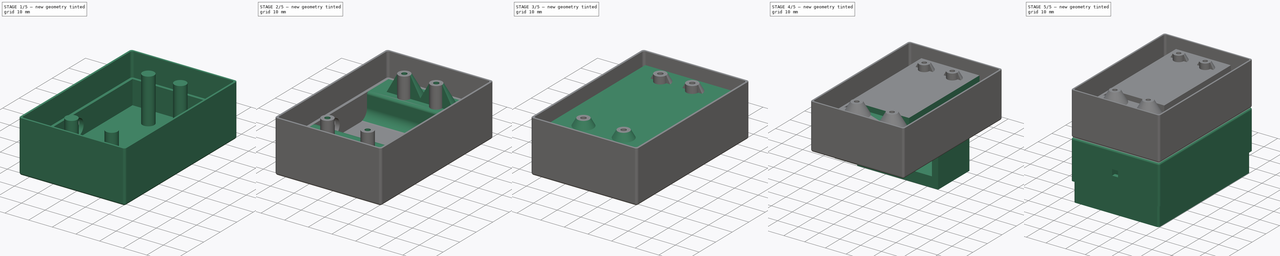
[diagram: build sequence overview — one tinted view per stage of 5, left to right]
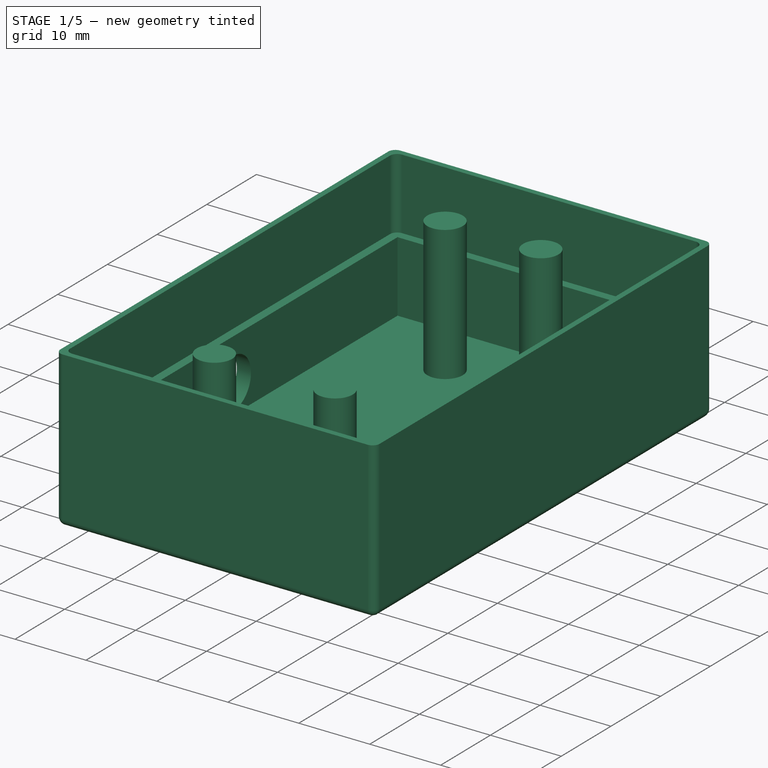
[diagram: stage 1 of 5 — iso view after this stage's code; geometry added in this stage tinted green]
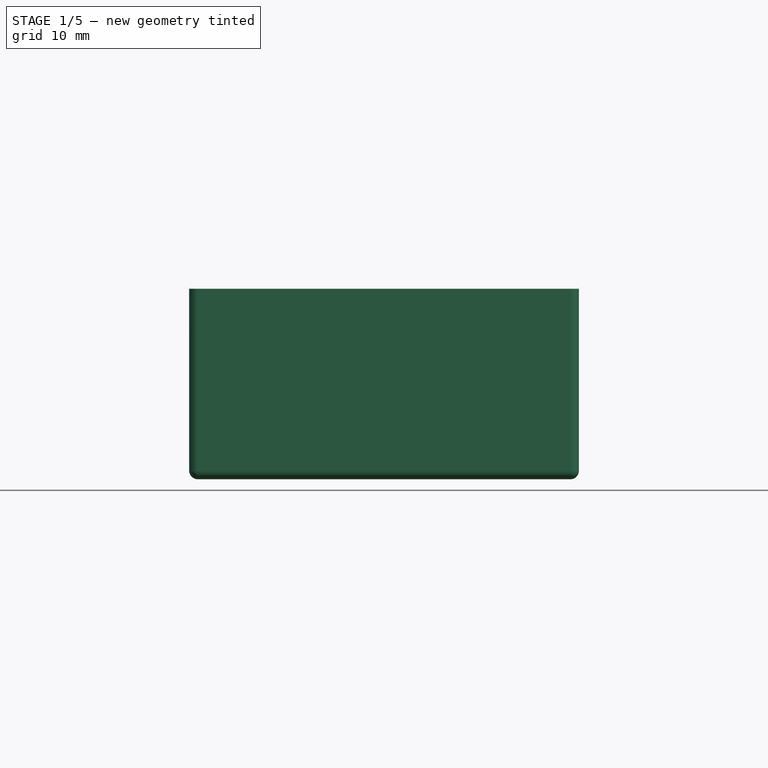
[diagram: stage 1 of 5 — front view after this stage's code; geometry added in this stage tinted green]
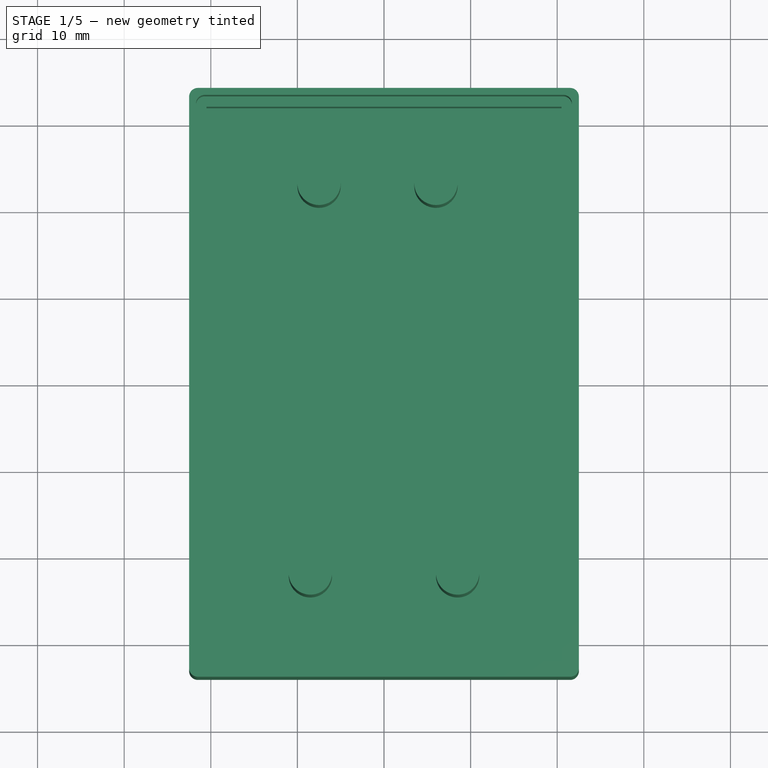
[diagram: stage 1 of 5 — top view after this stage's code; geometry added in this stage tinted green]
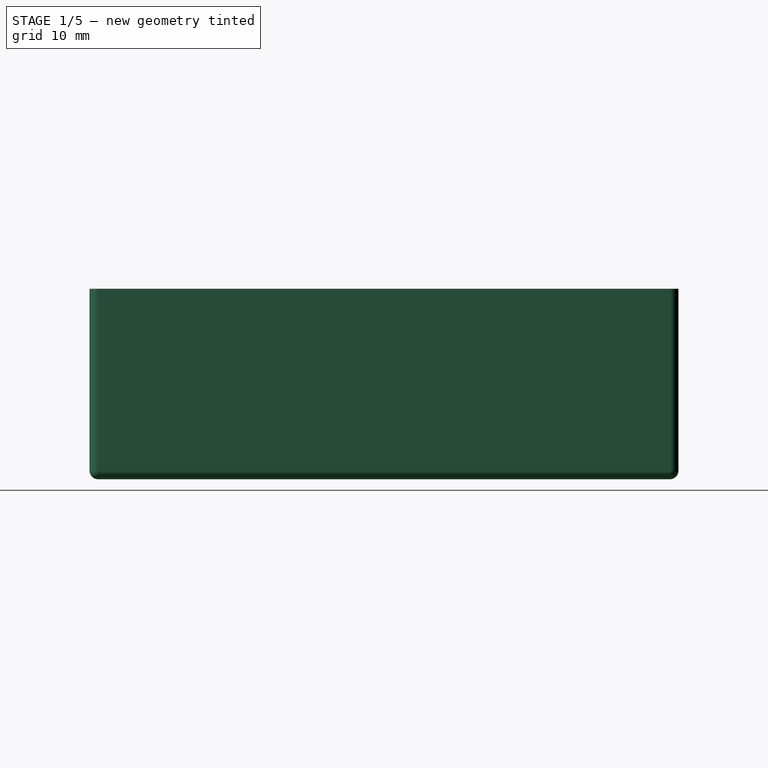
[diagram: stage 1 of 5 — right view after this stage's code; geometry added in this stage tinted green]
FCSTD DOCUMENT  (FreeCAD 0.20R29410 (Git))
Label: lora_receiver
License: All rights reserved
LicenseURL: http://en.wikipedia.org/wiki/All_rights_reserved
objects: Sketcher::SketchObject×24, PartDesign::Pad×13, PartDesign::Fillet×10, PartDesign::Pocket×8, PartDesign::Body×3, PartDesign::Revolution×3, PartDesign::Mirrored×1
note: 96 computed .brp shape members not serialized (recipe doc carries the construction recipe); baked Part::Feature solids carry a one-line shape summary decoded from their .brp

FEATURE [Sketcher::SketchObject] Sketch007
  FullyConstrained = true
  MapMode = 5
  Support = -> [XY_Plane001]
  sketch-geometry (4):
    g0: LineSegment StartX=-22.5 StartY=34 StartZ=0 EndX=22.5 EndY=34 EndZ=0
    g1: LineSegment StartX=22.5 StartY=34 StartZ=0 EndX=22.5 EndY=-34 EndZ=0
    g2: LineSegment StartX=22.5 StartY=-34 StartZ=0 EndX=-22.5 EndY=-34 EndZ=0
    g3: LineSegment StartX=-22.5 StartY=-34 StartZ=0 EndX=-22.5 EndY=34 EndZ=0
  constraints (11):
    c: Coincident(g0,g1)
    c: Coincident(g1,g2)
    c: Coincident(g2,g3)
    c: Coincident(g3,g0)
    c: Horizontal(g0)
    c: Horizontal(g2)
    c: Vertical(g1)
    c: Vertical(g3)
    c: DistanceY(g1,g1) = 68
    c: DistanceX(g0,g0) = 45
    c: Symmetric(g1,g0,g-1)
FEATURE [PartDesign::Pad] Pad005
  Direction = (0,0,1)
  Length = 2
  Length2 = 10
  Profile = -> Sketch007
  ReferenceAxis = -> Sketch007 [N_Axis]
  Type = 0
FEATURE [Sketcher::SketchObject] Sketch008
  ExternalGeometry = -> [Pad005]
  FullyConstrained = true
  MapMode = 5
  Placement = pos=(0,0,2) rot=(0,0,1;0rad)
  Support = -> [Pad005]
  sketch-geometry (8):
    g0: LineSegment StartX=-22.5 StartY=34 StartZ=0 EndX=22.5 EndY=34 EndZ=0
    g1: LineSegment StartX=22.5 StartY=34 StartZ=0 EndX=22.5 EndY=-34 EndZ=0
    g2: LineSegment StartX=22.5 StartY=-34 StartZ=0 EndX=-22.5 EndY=-34 EndZ=0
    g3: LineSegment StartX=-22.5 StartY=-34 StartZ=0 EndX=-22.5 EndY=34 EndZ=0
    g4: LineSegment StartX=20.5 StartY=-32 StartZ=0 EndX=-20.5 EndY=-32 EndZ=0
    g5: LineSegment StartX=-20.5 StartY=-32 StartZ=0 EndX=-20.5 EndY=32 EndZ=0
    g6: LineSegment StartX=-20.5 StartY=32 StartZ=0 EndX=20.5 EndY=32 EndZ=0
    g7: LineSegment StartX=20.5 StartY=32 StartZ=0 EndX=20.5 EndY=-32 EndZ=0
  constraints (22):
    c: Coincident(g0,g1)
    c: Coincident(g1,g2)
    c: Coincident(g2,g3)
    c: Coincident(g3,g0)
    c: Horizontal(g0)
    c: Horizontal(g2)
    c: Vertical(g1)
    c: Vertical(g3)
    c: Coincident(g0,g-3)
    c: Coincident(g1,g-4)
    c: Coincident(g4,g5)
    c: Coincident(g5,g6)
    c: Coincident(g6,g7)
    c: Coincident(g7,g4)
    c: Horizontal(g4)
    c: Horizontal(g6)
    c: Vertical(g5)
    c: Vertical(g7)
    c: DistanceX(g0,g5) = 2
    c: DistanceY(g5,g0) = 2
    c: DistanceY(g1,g4) = 2
    c: DistanceX(g4,g1) = 2
FEATURE [PartDesign::Pad] Pad006
  BaseFeature = -> Pad005
  Direction = (0,0,1)
  Length = 20
  Length2 = 10
  Profile = -> Sketch008
  ReferenceAxis = -> Sketch008 [N_Axis]
  Type = 0
FEATURE [Sketcher::SketchObject] Sketch009
  FullyConstrained = true
  MapMode = 5
  Placement = pos=(-22.5,0,0) rot=(0.57735,-0.57735,-0.57735;2.0944rad)
  Support = -> [Pad006]
  sketch-geometry (1):
    g0: Circle CenterX=1 CenterY=6 CenterZ=0 NormalX=0 NormalY=0 NormalZ=1 AngleXU=0 Radius=3.5
  constraints (3):
    c: DistanceX(g-1,g0) = 1
    c: DistanceY(g-1,g0) = 6
    c: Diameter(g0) = 7
FEATURE [PartDesign::Pocket] Pocket002
  BaseFeature = -> Pad006
  Direction = (1,0,0)
  Length = 5
  Length2 = 5
  Profile = -> Sketch009
  ReferenceAxis = -> Sketch009 [N_Axis]
  Type = 0
FEATURE [Sketcher::SketchObject] Sketch010
  ExternalGeometry = -> [Pocket002]
  FullyConstrained = true
  MapMode = 5
  Placement = pos=(0,0,22) rot=(0,0,1;0rad)
  Support = -> [Pocket002]
  sketch-geometry (4):
    g0: LineSegment StartX=-21.7 StartY=33.2 StartZ=0 EndX=21.7 EndY=33.2 EndZ=0
    g1: LineSegment StartX=21.7 StartY=33.2 StartZ=0 EndX=21.7 EndY=-33.2 EndZ=0
    g2: LineSegment StartX=21.7 StartY=-33.2 StartZ=0 EndX=-21.7 EndY=-33.2 EndZ=0
    g3: LineSegment StartX=-21.7 StartY=-33.2 StartZ=0 EndX=-21.7 EndY=33.2 EndZ=0
  constraints (12):
    c: Coincident(g0,g1)
    c: Coincident(g1,g2)
    c: Coincident(g2,g3)
    c: Coincident(g3,g0)
    c: Horizontal(g0)
    c: Horizontal(g2)
    c: Vertical(g1)
    c: Vertical(g3)
    c: DistanceX(g-4,g1) = 1.2
    c: DistanceY(g1,g-4) = 1.2
    c: DistanceX(g0,g-3) = 1.2
    c: DistanceY(g-3,g0) = 1.2
FEATURE [PartDesign::Pocket] Pocket003
  BaseFeature = -> Pocket002
  Direction = (0,0,-1)
  Length = 10
  Length2 = 5
  Profile = -> Sketch010
  ReferenceAxis = -> Sketch010 [N_Axis]
  Type = 0
FEATURE [PartDesign::Fillet] Fillet001
  Base = -> Pocket003 [Edge12,Edge3,Edge13,Edge6,Edge16,Edge11,Edge9,Edge19]
  BaseFeature = -> Pocket003
  Radius = 1
  SupportTransform = false
  UseAllEdges = false
FEATURE [PartDesign::Body] Body002  label="top"
  Group = -> [Sketch011,Pad007,Sketch012,Pad008,Sketch013,Pad009,Sketch014,Pocket004,Fillet,Fillet002]
  Origin = -> Origin002
  Placement = pos=(0,0,21) rot=(0,0,1;0rad)
  Tip = -> Fillet002
FEATURE [PartDesign::Fillet] Fillet003
  Base = -> Fillet001 [Edge51,Edge54,Edge52,Edge56]
  BaseFeature = -> Fillet001
  Radius = 1
  SupportTransform = false
  UseAllEdges = false
FEATURE [PartDesign::Body] Body  label="board"
  Group = -> [Sketch,Pad,Sketch001,Pad001,Sketch002,Pad002,Sketch003,Pocket,Sketch004,Pocket001,Sketch005,Pad003,Sketch006,Pad004,Sketch015,Pocket005,Sketch016,Pocket006]
  Origin = -> Origin
  Tip = -> Pocket006
FEATURE [Sketcher::SketchObject] Sketch017
  FullyConstrained = true
  MapMode = 5
  Placement = pos=(0,0,2) rot=(0,0,1;0rad)
  Support = -> [Fillet003]
  sketch-geometry (4):
    g0: Circle CenterX=-7.5 CenterY=23 CenterZ=0 NormalX=0 NormalY=0 NormalZ=1 AngleXU=0 Radius=2.5
    g1: Circle CenterX=6 CenterY=23 CenterZ=0 NormalX=0 NormalY=0 NormalZ=1 AngleXU=0 Radius=2.5
    g2: Circle CenterX=-8.5 CenterY=-22 CenterZ=0 NormalX=0 NormalY=0 NormalZ=1 AngleXU=0 Radius=2.5
    g3: Circle CenterX=8.5 CenterY=-22 CenterZ=0 NormalX=0 NormalY=0 NormalZ=1 AngleXU=0 Radius=2.5
  constraints (11):
    c: Equal(g0,g1)
    c: Equal(g1,g3)
    c: Equal(g3,g2)
    c: Diameter(g2) = 5
    c: DistanceY(g3,g-1) = 22
    c: DistanceX(g-1,g3) = 8.5
    c: Symmetric(g3,g2,g-2)
    c: DistanceY(g-1,g1) = 23
    c: DistanceY(g-1,g0) = 23
    c: DistanceX(g-1,g1) = 6
    c: DistanceX(g0,g-1) = 7.5
FEATURE [PartDesign::Pad] Pad010
  BaseFeature = -> Fillet003
  Direction = (0,0,1)
  Length = 19
  Length2 = 10
  Profile = -> Sketch017
  ReferenceAxis = -> Sketch017 [N_Axis]
  Type = 0
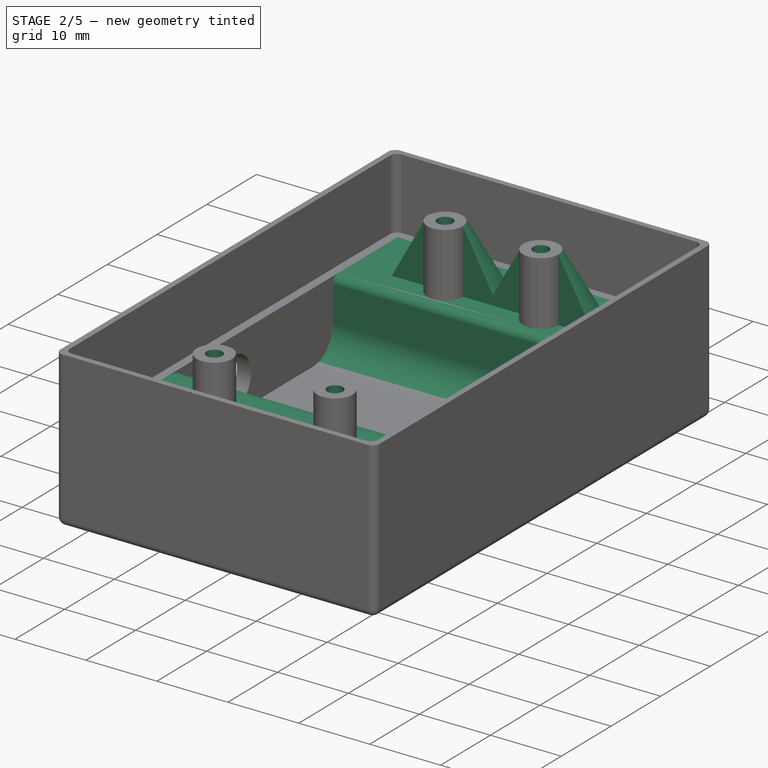
[diagram: stage 2 of 5 — iso view after this stage's code; geometry added in this stage tinted green]
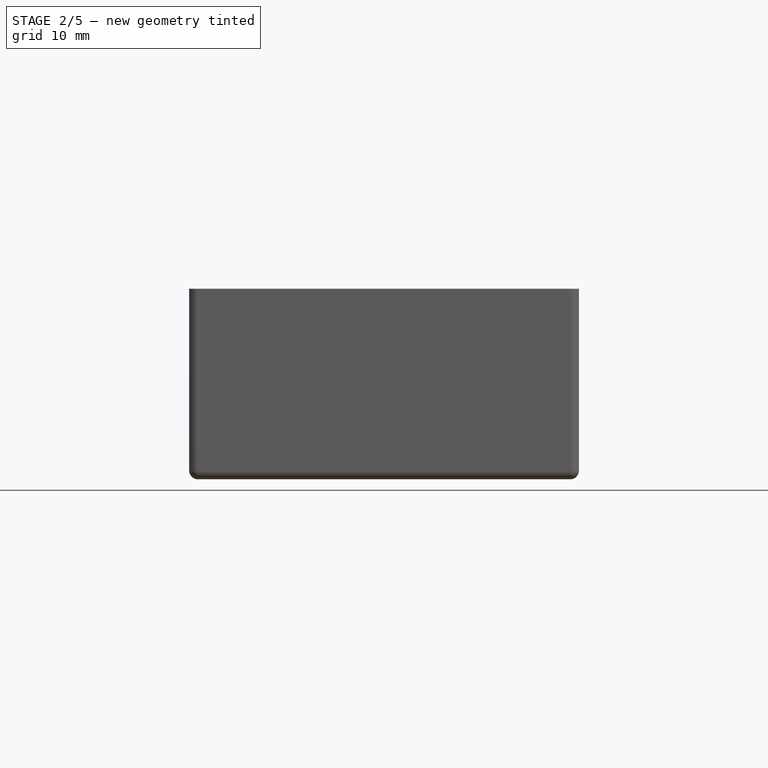
[diagram: stage 2 of 5 — front view after this stage's code; geometry added in this stage tinted green]
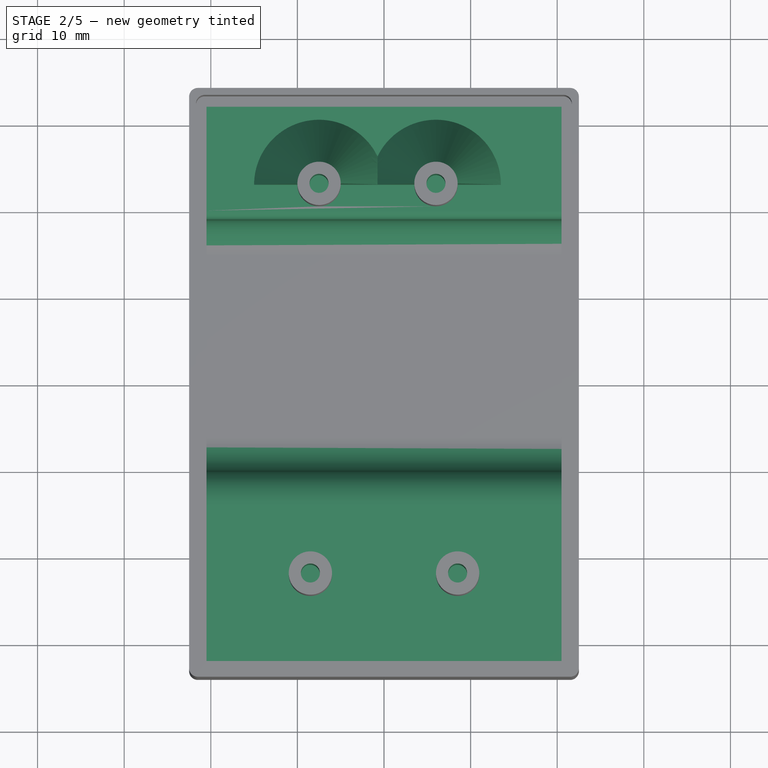
[diagram: stage 2 of 5 — top view after this stage's code; geometry added in this stage tinted green]
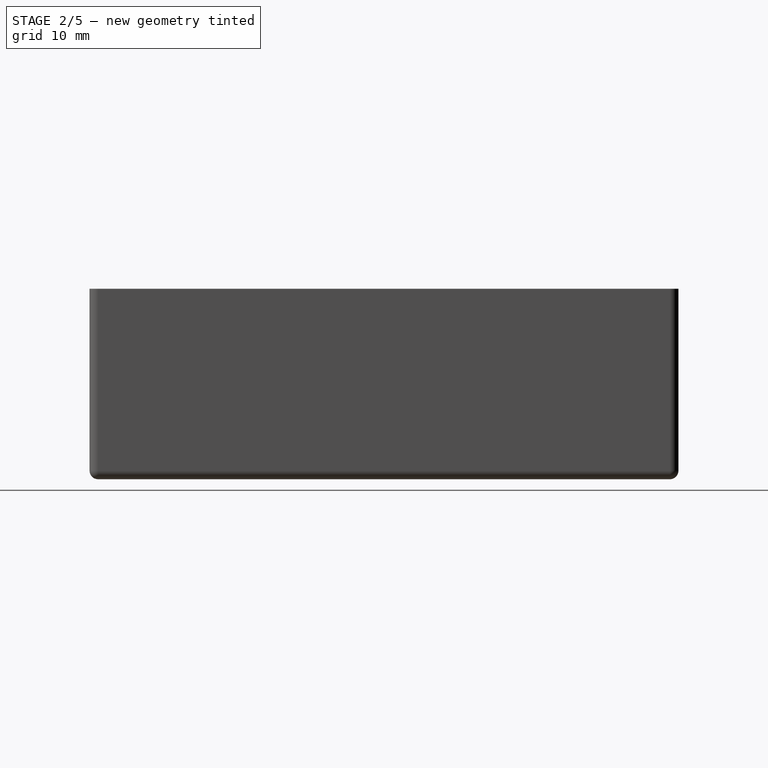
[diagram: stage 2 of 5 — right view after this stage's code; geometry added in this stage tinted green]
FEATURE [Sketcher::SketchObject] Sketch018
  ExternalGeometry = -> [Pad010]
  FullyConstrained = true
  MapMode = 5
  Placement = pos=(0,0,21) rot=(0,0,1;0rad)
  Support = -> [Pad010]
  sketch-geometry (4):
    g0: Circle CenterX=-7.5 CenterY=23 CenterZ=0 NormalX=0 NormalY=0 NormalZ=1 AngleXU=0 Radius=1.1
    g1: Circle CenterX=6 CenterY=23 CenterZ=0 NormalX=0 NormalY=0 NormalZ=1 AngleXU=0 Radius=1.1
    g2: Circle CenterX=-8.5 CenterY=-22 CenterZ=0 NormalX=0 NormalY=0 NormalZ=1 AngleXU=0 Radius=1.1
    g3: Circle CenterX=8.5 CenterY=-22 CenterZ=0 NormalX=0 NormalY=0 NormalZ=1 AngleXU=0 Radius=1.1
  constraints (8):
    c: Coincident(g0,g-4)
    c: Coincident(g1,g-3)
    c: Coincident(g2,g-5)
    c: Coincident(g3,g-6)
    c: Equal(g0,g1)
    c: Equal(g1,g3)
    c: Equal(g3,g2)
    c: Diameter(g1) = 2.2
FEATURE [PartDesign::Pocket] Pocket007
  BaseFeature = -> Pad010
  Direction = (0,0,-1)
  Length = 10
  Length2 = 5
  Profile = -> Sketch018
  ReferenceAxis = -> Sketch018 [N_Axis]
  Type = 0
FEATURE [Sketcher::SketchObject] Sketch019
  ExternalGeometry = -> [Pocket007]
  FullyConstrained = true
  MapMode = 5
  Placement = pos=(0,0,2) rot=(0,0,1;0rad)
  Support = -> [Pocket007]
  sketch-geometry (8):
    g0: LineSegment StartX=-20.5 StartY=32 StartZ=0 EndX=20.5 EndY=32 EndZ=0
    g1: LineSegment StartX=20.5 StartY=32 StartZ=0 EndX=20.5 EndY=19 EndZ=0
    g2: LineSegment StartX=20.5 StartY=19 StartZ=0 EndX=-20.5 EndY=19 EndZ=0
    g3: LineSegment StartX=-20.5 StartY=19 StartZ=0 EndX=-20.5 EndY=32 EndZ=0
    g4: LineSegment StartX=20.5 StartY=-32 StartZ=0 EndX=-20.5 EndY=-32 EndZ=0
    g5: LineSegment StartX=-20.5 StartY=-32 StartZ=0 EndX=-20.5 EndY=-10 EndZ=0
    g6: LineSegment StartX=-20.5 StartY=-10 StartZ=0 EndX=20.5 EndY=-10 EndZ=0
    g7: LineSegment StartX=20.5 StartY=-10 StartZ=0 EndX=20.5 EndY=-32 EndZ=0
  constraints (22):
    c: Coincident(g0,g1)
    c: Coincident(g1,g2)
    c: Coincident(g2,g3)
    c: Coincident(g3,g0)
    c: Horizontal(g0)
    c: Horizontal(g2)
    c: Vertical(g1)
    c: Vertical(g3)
    c: Coincident(g0,g-3)
    c: Coincident(g4,g5)
    c: Coincident(g5,g6)
    c: Coincident(g6,g7)
    c: Coincident(g7,g4)
    c: Horizontal(g4)
    c: Horizontal(g6)
    c: Vertical(g5)
    c: Vertical(g7)
    c: Coincident(g4,g-4)
    c: PointOnObject(g-4,g5)
    c: PointOnObject(g-3,g1)
    c: DistanceY(g1,g1) = 13
    c: DistanceY(g7,g7) = 22
FEATURE [PartDesign::Pad] Pad011
  BaseFeature = -> Pocket007
  Direction = (0,0,1)
  Length = 10
  Length2 = 10
  Profile = -> Sketch019
  ReferenceAxis = -> Sketch019 [N_Axis]
  Type = 0
FEATURE [PartDesign::Fillet] Fillet004
  Base = -> Pad011 [Edge104,Edge109]
  BaseFeature = -> Pad011
  Radius = 4
  SupportTransform = false
  UseAllEdges = false
FEATURE [PartDesign::Fillet] Fillet005
  Base = -> Fillet004 [Edge14]
  BaseFeature = -> Fillet004
  Radius = 1
  SupportTransform = false
  UseAllEdges = false
FEATURE [PartDesign::Fillet] Fillet006
  Base = -> Fillet005 [Edge39]
  BaseFeature = -> Fillet005
  Radius = 4
  SupportTransform = false
  UseAllEdges = false
FEATURE [Sketcher::SketchObject] Sketch020
  AttachmentOffset = pos=(0,0,-23) rot=(0,0,1;0rad)
  ExternalGeometry = -> [Fillet006]
  FullyConstrained = true
  MapMode = 5
  Placement = pos=(0,23,-5.1e-15) rot=(1,0,0;1.5708rad)
  Support = -> [XZ_Plane001]
  sketch-geometry (3):
    g0: LineSegment StartX=-10 StartY=21 StartZ=0 EndX=-10 EndY=12 EndZ=0
    g1: LineSegment StartX=-10 StartY=12 StartZ=0 EndX=-15 EndY=12 EndZ=0
    g2: LineSegment StartX=-15 StartY=12 StartZ=0 EndX=-10 EndY=21 EndZ=0
  constraints (7):
    c: Coincident(g0,g-3)
    c: Coincident(g0,g-4)
    c: Coincident(g1,g0)
    c: Horizontal(g1)
    c: Coincident(g2,g1)
    c: Coincident(g2,g0)
    c: DistanceX(g1,g1) = 5
FEATURE [PartDesign::Revolution] Revolution
  Angle = 180
  Axis = (0,0,1)
  Base = (-7.5,23,21)
  BaseFeature = -> Fillet006
  Profile = -> Sketch020
  ReferenceAxis = -> Fillet006 [Edge104]
  Reversed = true
FEATURE [Sketcher::SketchObject] Sketch021
  ExternalGeometry = -> [Revolution]
  FullyConstrained = true
  MapMode = 5
  Placement = pos=(-2.8e-15,23,0) rot=(1,0,0;1.5708rad)
  Support = -> [Revolution]
  sketch-geometry (3):
    g0: LineSegment StartX=3.5 StartY=21 StartZ=0 EndX=3.5 EndY=12 EndZ=0
    g1: LineSegment StartX=3.5 StartY=12 StartZ=0 EndX=-1.5 EndY=12 EndZ=0
    g2: LineSegment StartX=-1.5 StartY=12 StartZ=0 EndX=3.5 EndY=21 EndZ=0
  constraints (7):
    c: Coincident(g0,g-4)
    c: Coincident(g0,g-5)
    c: Coincident(g1,g0)
    c: Horizontal(g1)
    c: Equal(g-3,g1)
    c: Coincident(g2,g1)
    c: Coincident(g2,g0)
FEATURE [PartDesign::Revolution] Revolution001
  Angle = 180
  Axis = (0,0,1)
  Base = (6,23,21)
  BaseFeature = -> Revolution
  Profile = -> Sketch021
  ReferenceAxis = -> Revolution [Edge92]
  Reversed = true
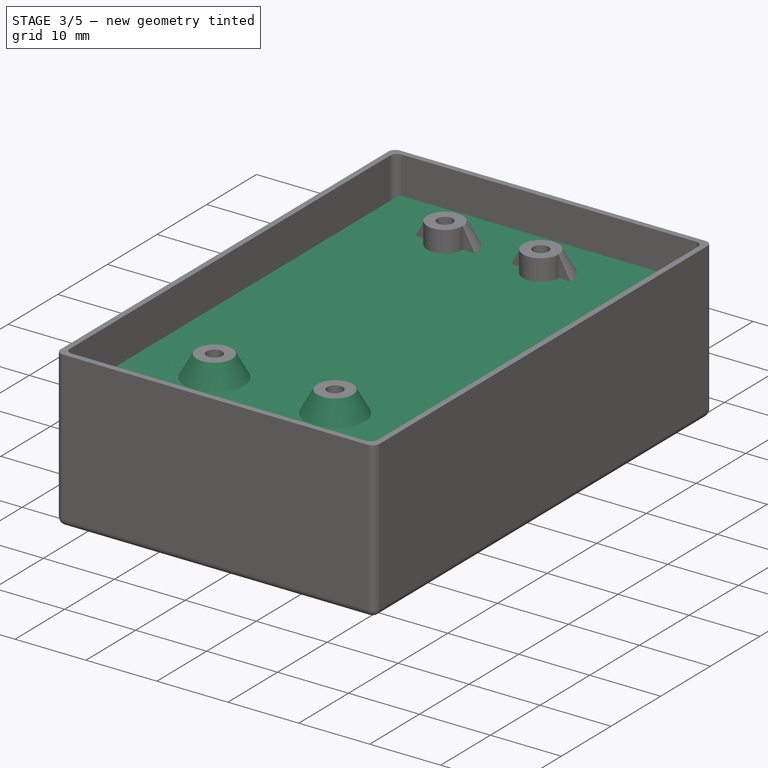
[diagram: stage 3 of 5 — iso view after this stage's code; geometry added in this stage tinted green]
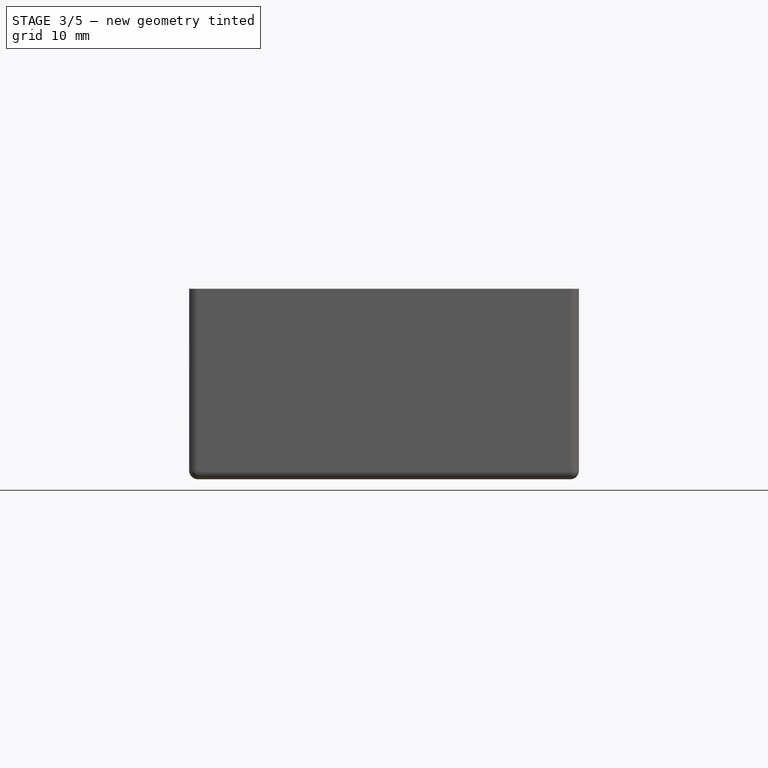
[diagram: stage 3 of 5 — front view after this stage's code; geometry added in this stage tinted green]
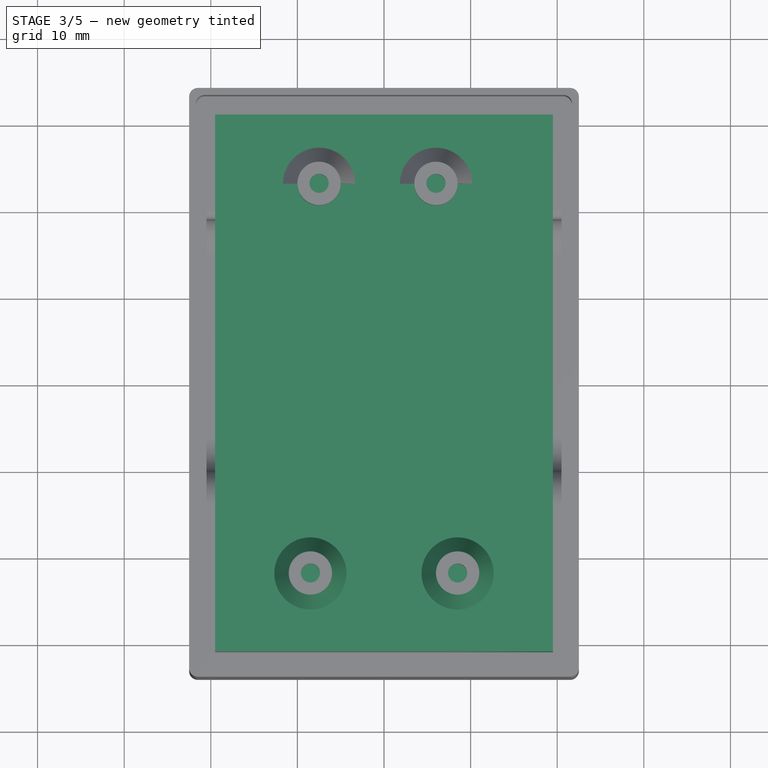
[diagram: stage 3 of 5 — top view after this stage's code; geometry added in this stage tinted green]
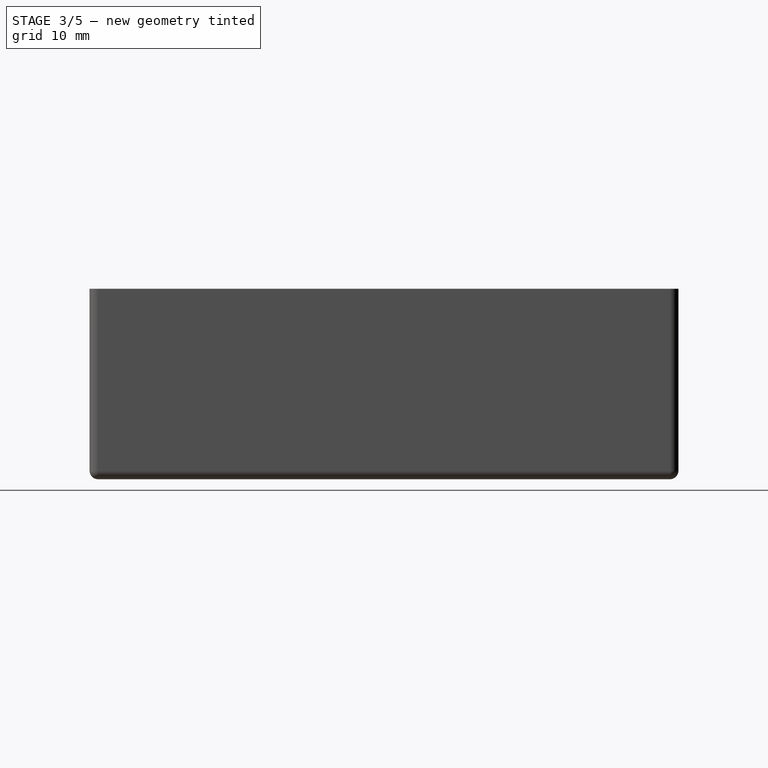
[diagram: stage 3 of 5 — right view after this stage's code; geometry added in this stage tinted green]
FEATURE [Sketcher::SketchObject] Sketch
  FullyConstrained = true
  MapMode = 5
  Support = -> [XY_Plane]
  sketch-geometry (4):
    g0: LineSegment StartX=-19.5 StartY=31 StartZ=0 EndX=19.5 EndY=31 EndZ=0
    g1: LineSegment StartX=19.5 StartY=31 StartZ=0 EndX=19.5 EndY=-31 EndZ=0
    g2: LineSegment StartX=19.5 StartY=-31 StartZ=0 EndX=-19.5 EndY=-31 EndZ=0
    g3: LineSegment StartX=-19.5 StartY=-31 StartZ=0 EndX=-19.5 EndY=31 EndZ=0
  constraints (11):
    c: Coincident(g0,g1)
    c: Coincident(g1,g2)
    c: Coincident(g2,g3)
    c: Coincident(g3,g0)
    c: Horizontal(g0)
    c: Horizontal(g2)
    c: Vertical(g1)
    c: Vertical(g3)
    c: DistanceY(g1,g1) = 62
    c: DistanceX(g0,g0) = 39
    c: Symmetric(g0,g1,g-1)
FEATURE [PartDesign::Pad] Pad
  Direction = (0,0,1)
  Length = 18
  Length2 = 10
  Profile = -> Sketch
  ReferenceAxis = -> Sketch [N_Axis]
  Type = 0
FEATURE [PartDesign::Fillet] Fillet007
  Base = -> Revolution001 [Edge75]
  BaseFeature = -> Revolution001
  Radius = 1
  SupportTransform = false
  UseAllEdges = false
FEATURE [PartDesign::Fillet] Fillet008
  Base = -> Fillet007 [Edge1,Edge4,Edge2]
  BaseFeature = -> Fillet007
  Radius = 1
  SupportTransform = false
  UseAllEdges = false
FEATURE [Sketcher::SketchObject] Sketch022
  AttachmentOffset = pos=(0,0,22) rot=(0,0,1;0rad)
  ExternalGeometry = -> [Fillet008]
  FullyConstrained = true
  MapMode = 5
  Placement = pos=(0,-22,4.9e-15) rot=(1,0,0;1.5708rad)
  Support = -> [XZ_Plane001]
  sketch-geometry (3):
    g0: LineSegment StartX=-6 StartY=21 StartZ=0 EndX=-6 EndY=12 EndZ=0
    g1: LineSegment StartX=-6 StartY=12 StartZ=0 EndX=-1 EndY=12 EndZ=0
    g2: LineSegment StartX=-1 StartY=12 StartZ=0 EndX=-6 EndY=21 EndZ=0
  constraints (7):
    c: Coincident(g-3,g0)
    c: Coincident(g0,g-4)
    c: Coincident(g1,g0)
    c: Horizontal(g1)
    c: Coincident(g2,g1)
    c: Coincident(g2,g0)
    c: DistanceX(g1,g1) = 5
FEATURE [PartDesign::Revolution] Revolution002
  Angle = 360
  Axis = (0,0,1)
  Base = (-8.5,-22,21)
  BaseFeature = -> Fillet008
  Profile = -> Sketch022
  ReferenceAxis = -> Fillet008 [Edge138]
FEATURE [PartDesign::Mirrored] Mirrored
  BaseFeature = -> Revolution002
  MirrorPlane = -> Sketch022 [V_Axis]
  Originals = -> [Revolution002]
FEATURE [PartDesign::Fillet] Fillet009
  Base = -> Mirrored [Edge90,Edge91]
  BaseFeature = -> Mirrored
  Radius = 1
  SupportTransform = false
  UseAllEdges = false
FEATURE [Sketcher::SketchObject] Sketch023
  ExternalGeometry = -> [Fillet009]
  FullyConstrained = true
  MapMode = 5
  Placement = pos=(0,0,2) rot=(0,0,1;0rad)
  Support = -> [Fillet009]
  sketch-geometry (5):
    g0: LineSegment StartX=-10 StartY=8 StartZ=0 EndX=10 EndY=8 EndZ=0
    g1: LineSegment StartX=10 StartY=8 StartZ=0 EndX=10 EndY=1 EndZ=0
    g2: LineSegment StartX=10 StartY=1 StartZ=0 EndX=-10 EndY=1 EndZ=0
    g3: LineSegment StartX=-10 StartY=1 StartZ=0 EndX=-10 EndY=8 EndZ=0
    g4: LineSegment StartX=-20.5 StartY=4.5 StartZ=0 EndX=20.5 EndY=4.5 EndZ=0
  constraints (13):
    c: Coincident(g0,g1)
    c: Coincident(g1,g2)
    c: Coincident(g2,g3)
    c: Coincident(g3,g0)
    c: Horizontal(g2)
    c: Vertical(g3)
    c: DistanceX(g0,g0) = 20
    c: DistanceY(g1,g1) = 7
    c: Symmetric(g0,g0,g-2)
    c: PointOnObject(g4,g-5)
    c: PointOnObject(g4,g-6)
    c: Symmetric(g-4,g-3,g4)
    c: Symmetric(g1,g0,g4)
FEATURE [PartDesign::Pad] Pad012
  BaseFeature = -> Fillet009
  Direction = (0,0,1)
  Length = 2.8
  Length2 = 10
  Profile = -> Sketch023
  ReferenceAxis = -> Sketch023 [N_Axis]
  Type = 0
FEATURE [PartDesign::Body] Body001  label="bottom"
  Group = -> [Sketch007,Pad005,Sketch008,Pad006,Sketch009,Pocket002,Sketch010,Pocket003,Fillet001,Fillet003,Sketch017,Pad010,Sketch018,Pocket007,Sketch019,Pad011,Fillet004,Fillet005,Fillet006,Sketch020,Revolution,Sketch021,Revolution001,Fillet007,Fillet008,Sketch022,Revolution002,Mirrored,Fillet009,Sketch023,Pad012]
  Origin = -> Origin001
  Placement = pos=(0,0,-21) rot=(0,0,1;0rad)
  Tip = -> Pad012
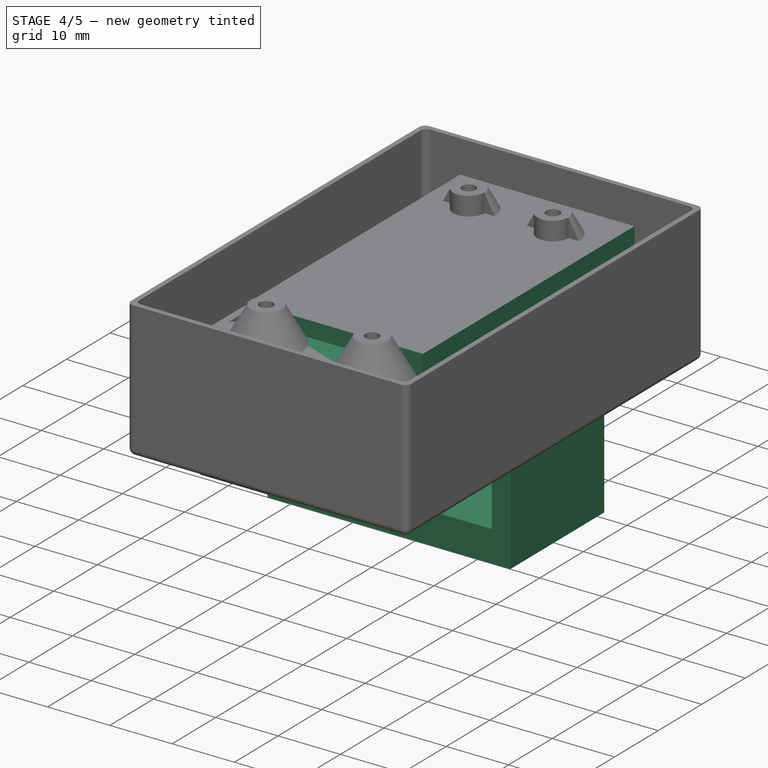
[diagram: stage 4 of 5 — iso view after this stage's code; geometry added in this stage tinted green]
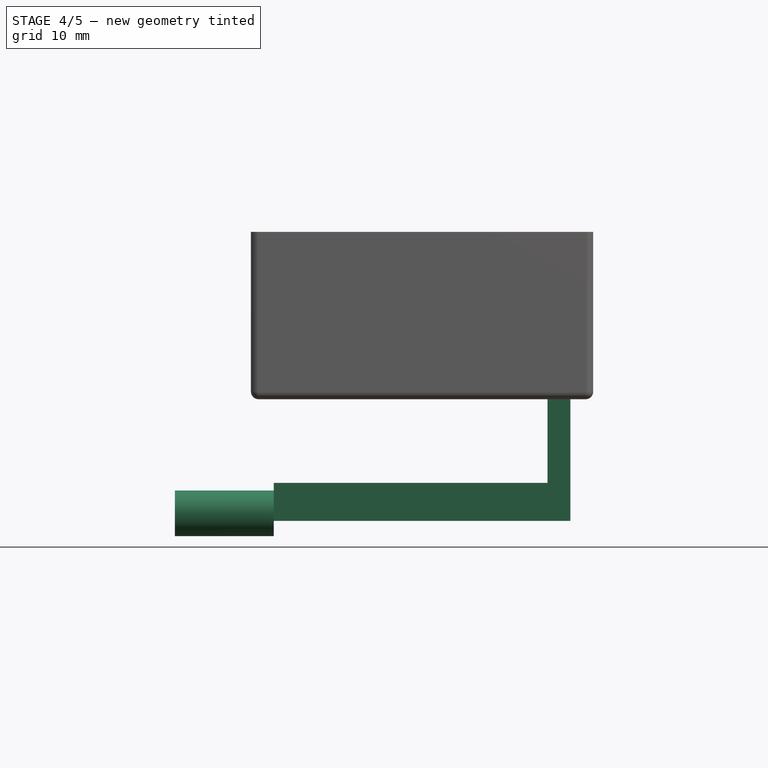
[diagram: stage 4 of 5 — front view after this stage's code; geometry added in this stage tinted green]
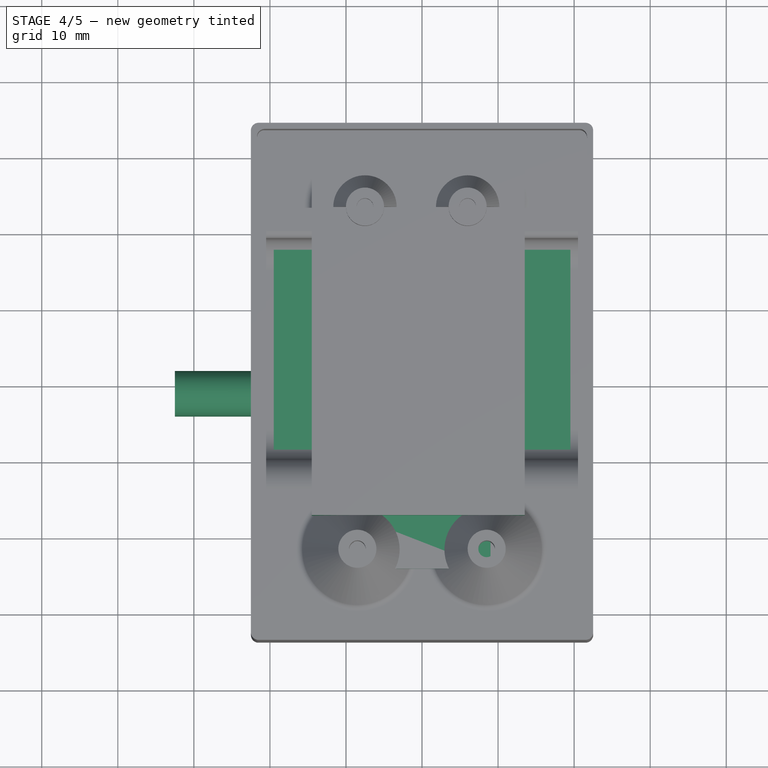
[diagram: stage 4 of 5 — top view after this stage's code; geometry added in this stage tinted green]
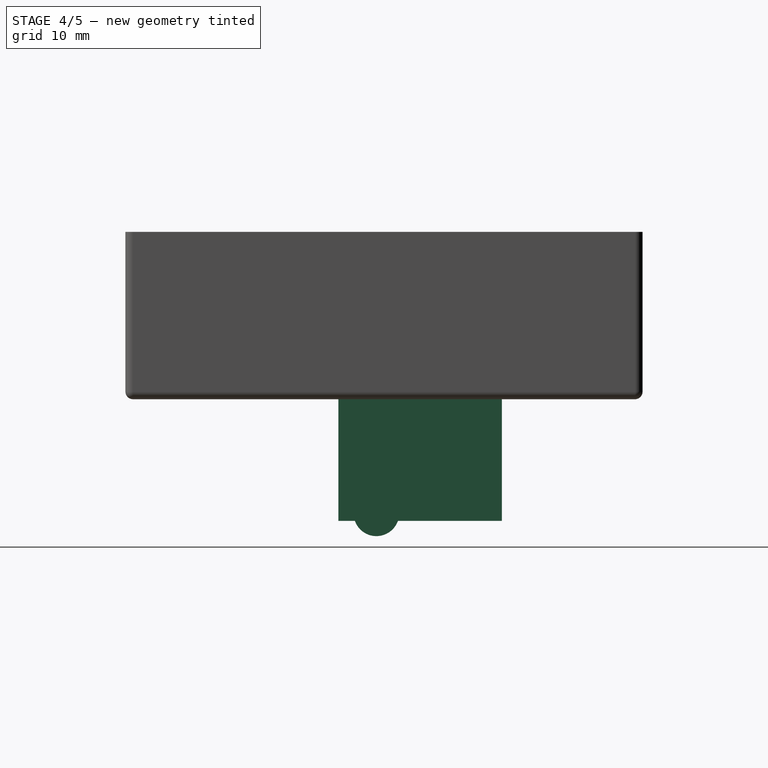
[diagram: stage 4 of 5 — right view after this stage's code; geometry added in this stage tinted green]
FEATURE [Sketcher::SketchObject] Sketch001
  ExternalGeometry = -> [Pad]
  FullyConstrained = true
  MapMode = 5
  Placement = pos=(0,0,0) rot=(1,0,0;3.14159rad)
  Support = -> [Pad]
  sketch-geometry (4):
    g0: LineSegment StartX=-19.5 StartY=6 StartZ=0 EndX=19.5 EndY=6 EndZ=0
    g1: LineSegment StartX=19.5 StartY=6 StartZ=0 EndX=19.5 EndY=-15.5 EndZ=0
    g2: LineSegment StartX=19.5 StartY=-15.5 StartZ=0 EndX=-19.5 EndY=-15.5 EndZ=0
    g3: LineSegment StartX=-19.5 StartY=-15.5 StartZ=0 EndX=-19.5 EndY=6 EndZ=0
  constraints (12):
    c: Coincident(g0,g1)
    c: Coincident(g1,g2)
    c: Coincident(g2,g3)
    c: Coincident(g3,g0)
    c: Horizontal(g0)
    c: Horizontal(g2)
    c: Vertical(g1)
    c: Vertical(g3)
    c: DistanceY(g-3,g0) = 37
    c: DistanceY(g1,g1) = 21.5
    c: PointOnObject(g-3,g3)
    c: PointOnObject(g-3,g1)
FEATURE [PartDesign::Pad] Pad001
  BaseFeature = -> Pad
  Direction = (0,0,-1)
  Length = 16
  Length2 = 10
  Profile = -> Sketch001
  ReferenceAxis = -> Sketch001 [N_Axis]
  Type = 0
FEATURE [Sketcher::SketchObject] Sketch002
  ExternalGeometry = -> [Pad001]
  FullyConstrained = true
  MapMode = 5
  Placement = pos=(-19.5,0,0) rot=(0.57735,-0.57735,-0.57735;2.0944rad)
  Support = -> [Pad001]
  sketch-geometry (1):
    g0: Circle CenterX=1 CenterY=-15 CenterZ=0 NormalX=0 NormalY=0 NormalZ=1 AngleXU=0 Radius=3
  constraints (3):
    c: DistanceY(g0,g-1) = 15
    c: Diameter(g0) = 6
    c: DistanceX(g0,g-3) = 5
FEATURE [PartDesign::Pad] Pad002
  BaseFeature = -> Pad001
  Direction = (-1,0,0)
  Length = 13
  Length2 = 10
  Profile = -> Sketch002
  ReferenceAxis = -> Sketch002 [N_Axis]
  Type = 0
FEATURE [Sketcher::SketchObject] Sketch003
  ExternalGeometry = -> [Pad002]
  FullyConstrained = true
  MapMode = 5
  Placement = pos=(0,-6,0) rot=(1,0,0;1.5708rad)
  Support = -> [Pad002]
  sketch-geometry (4):
    g0: LineSegment StartX=-19.5 StartY=0 StartZ=0 EndX=16.5 EndY=0 EndZ=0
    g1: LineSegment StartX=16.5 StartY=0 StartZ=0 EndX=16.5 EndY=-11 EndZ=0
    g2: LineSegment StartX=16.5 StartY=-11 StartZ=0 EndX=-19.5 EndY=-11 EndZ=0
    g3: LineSegment StartX=-19.5 StartY=-11 StartZ=0 EndX=-19.5 EndY=0 EndZ=0
  constraints (11):
    c: Coincident(g0,g1)
    c: Coincident(g1,g2)
    c: Coincident(g2,g3)
    c: Coincident(g3,g0)
    c: Horizontal(g0)
    c: Horizontal(g2)
    c: Vertical(g1)
    c: Vertical(g3)
    c: Coincident(g0,g-4)
    c: DistanceY(g-3,g1) = 5
    c: DistanceX(g1,g-3) = 3
FEATURE [PartDesign::Pocket] Pocket
  BaseFeature = -> Pad002
  Direction = (0,1,-2e-16)
  Length = 5
  Length2 = 5
  Profile = -> Sketch003
  ReferenceAxis = -> Sketch003 [N_Axis]
  Type = 1
FEATURE [Sketcher::SketchObject] Sketch004
  ExternalGeometry = -> [Pocket]
  FullyConstrained = true
  MapMode = 5
  Placement = pos=(0,0,18) rot=(0,0,1;0rad)
  Support = -> [Pocket]
  sketch-geometry (8):
    g0: LineSegment StartX=13.5 StartY=-17.5 StartZ=0 EndX=-14.5 EndY=-17.5 EndZ=0
    g1: LineSegment StartX=-14.5 StartY=-17.5 StartZ=0 EndX=-14.5 EndY=31 EndZ=0
    g2: LineSegment StartX=13.5 StartY=31 StartZ=0 EndX=13.5 EndY=-17.5 EndZ=0
    g3: LineSegment StartX=13.5 StartY=31 StartZ=0 EndX=19.5 EndY=31 EndZ=0
    g4: LineSegment StartX=19.5 StartY=31 StartZ=0 EndX=19.5 EndY=-31 EndZ=0
    g5: LineSegment StartX=19.5 StartY=-31 StartZ=0 EndX=-19.5 EndY=-31 EndZ=0
    g6: LineSegment StartX=-19.5 StartY=-31 StartZ=0 EndX=-19.5 EndY=31 EndZ=0
    g7: LineSegment StartX=-19.5 StartY=31 StartZ=0 EndX=-14.5 EndY=31 EndZ=0
  constraints (20):
    c: Coincident(g0,g1)
    c: Coincident(g2,g0)
    c: Horizontal(g0)
    c: Vertical(g1)
    c: Vertical(g2)
    c: PointOnObject(g1,g-3)
    c: DistanceX(g0,g0) = 28
    c: DistanceX(g2,g-3) = 6
    c: DistanceY(g1,g1) = 48.5
    c: Coincident(g3,g-3)
    c: Coincident(g3,g4)
    c: Coincident(g4,g-4)
    c: Coincident(g4,g5)
    c: Coincident(g5,g-4)
    c: Coincident(g5,g6)
    c: Coincident(g6,g-3)
    c: Coincident(g6,g7)
    c: Coincident(g7,g1)
    c: Coincident(g2,g3)
    c: Horizontal(g3)
FEATURE [PartDesign::Pocket] Pocket001
  BaseFeature = -> Pocket
  Direction = (0,0,-1)
  Length = 15
  Length2 = 5
  Profile = -> Sketch004
  ReferenceAxis = -> Sketch004 [N_Axis]
  Type = 0
FEATURE [Sketcher::SketchObject] Sketch005
  ExternalGeometry = -> [Pocket001]
  FullyConstrained = true
  MapMode = 5
  Placement = pos=(0,-17.5,0) rot=(1,0,0;1.5708rad)
  Support = -> [Pocket001]
  sketch-geometry (4):
    g0: LineSegment StartX=-9 StartY=15.5 StartZ=0 EndX=9 EndY=15.5 EndZ=0
    g1: LineSegment StartX=9 StartY=15.5 StartZ=0 EndX=9 EndY=15 EndZ=0
    g2: LineSegment StartX=9 StartY=15 StartZ=0 EndX=-9 EndY=15 EndZ=0
    g3: LineSegment StartX=-9 StartY=15 StartZ=0 EndX=-9 EndY=15.5 EndZ=0
  constraints (11):
    c: Coincident(g0,g1)
    c: Coincident(g1,g2)
    c: Coincident(g2,g3)
    c: Coincident(g3,g0)
    c: Horizontal(g2)
    c: Vertical(g1)
    c: Vertical(g3)
    c: DistanceY(g-3,g1) = 12
    c: DistanceY(g1,g1) = 0.5
    c: DistanceX(g0,g0) = 18
    c: Symmetric(g0,g0,g-2)
FEATURE [PartDesign::Pad] Pad003
  BaseFeature = -> Pocket001
  Direction = (0,-1,2e-16)
  Length = 7
  Length2 = 10
  Profile = -> Sketch005
  ReferenceAxis = -> Sketch005 [N_Axis]
  Type = 0
FEATURE [Sketcher::SketchObject] Sketch006
  ExternalGeometry = -> [Pad003]
  FullyConstrained = true
  MapMode = 5
  Placement = pos=(0,0,3) rot=(0,0,1;0rad)
  Support = -> [Pad003]
  sketch-geometry (5):
    g0: LineSegment StartX=-17 StartY=-22.5 StartZ=0 EndX=-11 EndY=-22.5 EndZ=0
    g1: LineSegment StartX=-11 StartY=-22.5 StartZ=0 EndX=-11 EndY=-30.5 EndZ=0
    g2: LineSegment StartX=-11 StartY=-30.5 StartZ=0 EndX=-17 EndY=-30.5 EndZ=0
    g3: LineSegment StartX=-17 StartY=-30.5 StartZ=0 EndX=-17 EndY=-22.5 EndZ=0
    g4: Circle CenterX=12.5 CenterY=-26 CenterZ=0 NormalX=0 NormalY=0 NormalZ=1 AngleXU=0 Radius=2.5
  constraints (15):
    c: Coincident(g0,g1)
    c: Coincident(g1,g2)
    c: Coincident(g2,g3)
    c: Coincident(g3,g0)
    c: Horizontal(g0)
    c: Horizontal(g2)
    c: Vertical(g1)
    c: Vertical(g3)
    c: DistanceY(g1,g1) = 8
    c: DistanceX(g0,g0) = 6
    c: DistanceX(g-3,g0) = 8.5
    c: DistanceY(g-3,g0) = 8.5
    c: Diameter(g4) = 5
    c: DistanceX(g4,g-3) = 7
    c: DistanceY(g-3,g4) = 5
FEATURE [PartDesign::Pad] Pad004
  BaseFeature = -> Pad003
  Direction = (0,0,1)
  Length = 7
  Length2 = 10
  Profile = -> Sketch006
  ReferenceAxis = -> Sketch006 [N_Axis]
  Type = 0
FEATURE [Sketcher::SketchObject] Sketch015
  ExternalGeometry = -> [Pad004]
  FullyConstrained = true
  MapMode = 5
  Placement = pos=(0,0,0) rot=(1,0,0;3.14159rad)
  Support = -> [Pad004]
  sketch-geometry (4):
    g0: Circle CenterX=-8.5 CenterY=22 CenterZ=0 NormalX=0 NormalY=0 NormalZ=1 AngleXU=0 Radius=1.5
    g1: Circle CenterX=8.5 CenterY=22 CenterZ=0 NormalX=0 NormalY=0 NormalZ=1 AngleXU=0 Radius=1.5
    g2: Circle CenterX=-7.5 CenterY=-23 CenterZ=0 NormalX=0 NormalY=0 NormalZ=1 AngleXU=0 Radius=1.5
    g3: Circle CenterX=6 CenterY=-23 CenterZ=0 NormalX=0 NormalY=0 NormalZ=1 AngleXU=0 Radius=1.5
  constraints (12):
    c: Equal(g0,g1)
    c: Equal(g1,g3)
    c: Equal(g3,g2)
    c: Diameter(g1) = 3
    c: DistanceX(g1,g-3) = 11
    c: Symmetric(g1,g0,g-2)
    c: DistanceY(g1,g-3) = 9
    c: DistanceX(g3,g-4) = 13.5
    c: DistanceY(g-4,g3) = 8
    c: DistanceY(g-5,g2) = 8
    c: DistanceX(g-5,g2) = 12
    c: DistanceX(g2,g3) = 13.5
FEATURE [PartDesign::Pocket] Pocket005
  BaseFeature = -> Pad004
  Direction = (0,0,1)
  Length = 5
  Length2 = 5
  Profile = -> Sketch015
  ReferenceAxis = -> Sketch015 [N_Axis]
  Type = 0
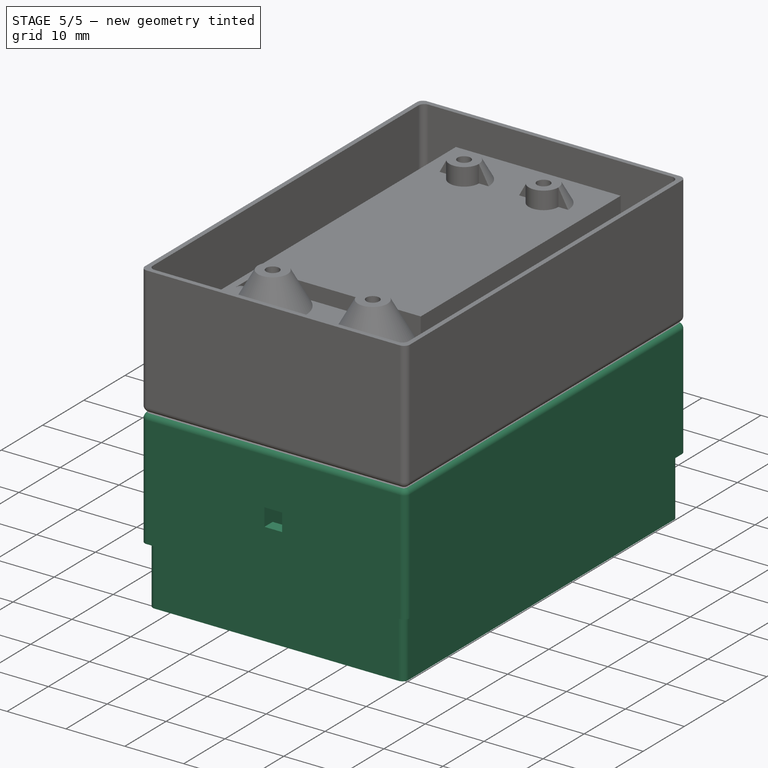
[diagram: stage 5 of 5 — iso view after this stage's code; geometry added in this stage tinted green]
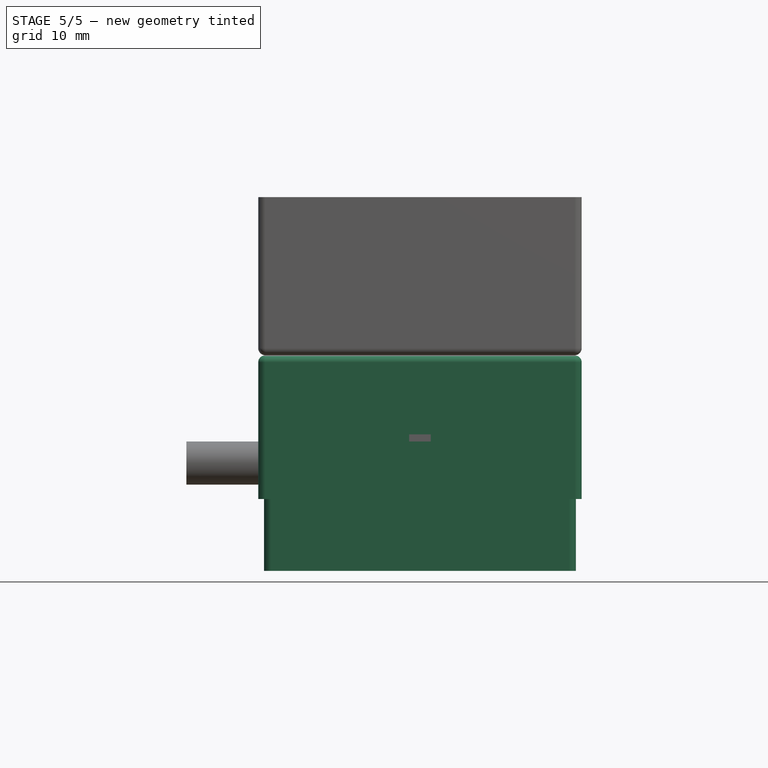
[diagram: stage 5 of 5 — front view after this stage's code; geometry added in this stage tinted green]
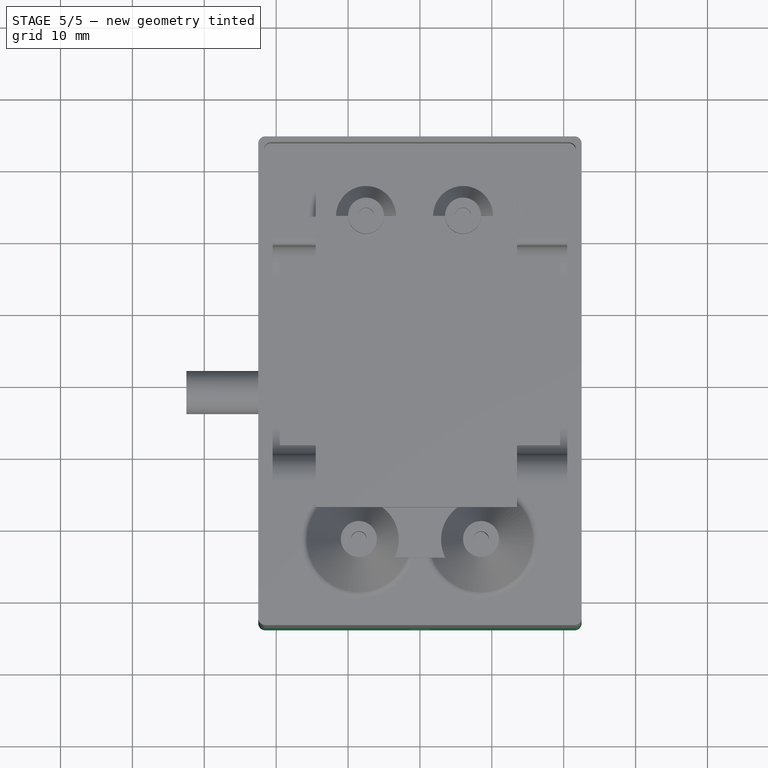
[diagram: stage 5 of 5 — top view after this stage's code; geometry added in this stage tinted green]
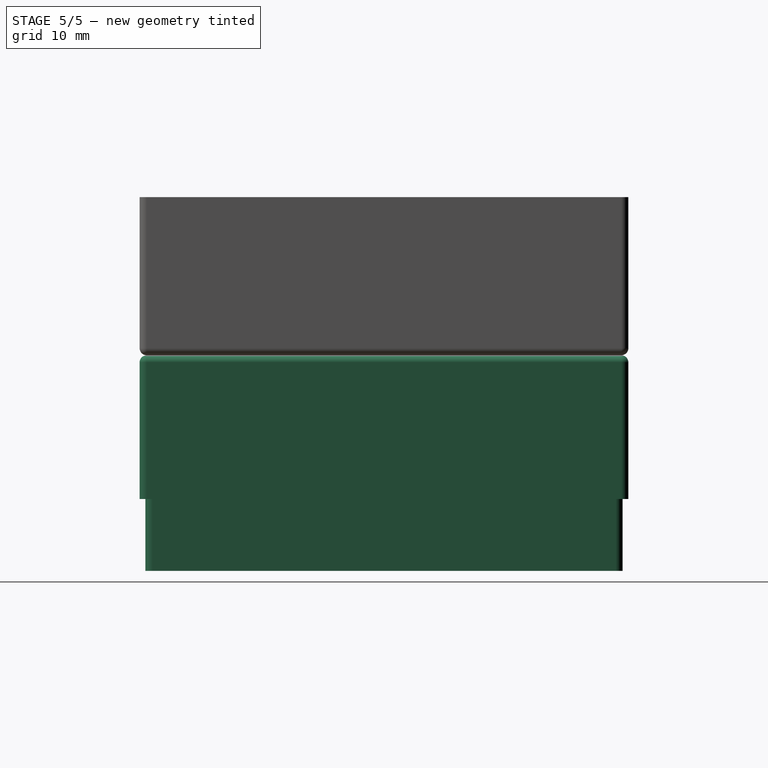
[diagram: stage 5 of 5 — right view after this stage's code; geometry added in this stage tinted green]
FEATURE [Sketcher::SketchObject] Sketch011
  FullyConstrained = true
  MapMode = 5
  Support = -> [XY_Plane002]
  sketch-geometry (4):
    g0: LineSegment StartX=-22.5 StartY=34 StartZ=0 EndX=22.5 EndY=34 EndZ=0
    g1: LineSegment StartX=22.5 StartY=34 StartZ=0 EndX=22.5 EndY=-34 EndZ=0
    g2: LineSegment StartX=22.5 StartY=-34 StartZ=0 EndX=-22.5 EndY=-34 EndZ=0
    g3: LineSegment StartX=-22.5 StartY=-34 StartZ=0 EndX=-22.5 EndY=34 EndZ=0
  constraints (11):
    c: Coincident(g0,g1)
    c: Coincident(g1,g2)
    c: Coincident(g2,g3)
    c: Coincident(g3,g0)
    c: Horizontal(g0)
    c: Horizontal(g2)
    c: Vertical(g1)
    c: Vertical(g3)
    c: DistanceX(g0,g0) = 45
    c: DistanceY(g1,g1) = 68
    c: Symmetric(g1,g0,g-1)
FEATURE [PartDesign::Pad] Pad007
  Direction = (0,0,1)
  Length = 2
  Length2 = 10
  Profile = -> Sketch011
  ReferenceAxis = -> Sketch011 [N_Axis]
  Reversed = true
  Type = 0
FEATURE [Sketcher::SketchObject] Sketch012
  ExternalGeometry = -> [Pad007]
  FullyConstrained = true
  MapMode = 5
  Placement = pos=(0,0,-2) rot=(1,0,0;3.14159rad)
  Support = -> [Pad007]
  sketch-geometry (8):
    g0: LineSegment StartX=22.5 StartY=-34 StartZ=0 EndX=-22.5 EndY=-34 EndZ=0
    g1: LineSegment StartX=-22.5 StartY=-34 StartZ=0 EndX=-22.5 EndY=34 EndZ=0
    g2: LineSegment StartX=-22.5 StartY=34 StartZ=0 EndX=22.5 EndY=34 EndZ=0
    g3: LineSegment StartX=22.5 StartY=34 StartZ=0 EndX=22.5 EndY=-34 EndZ=0
    g4: LineSegment StartX=-20.5 StartY=32 StartZ=0 EndX=20.5 EndY=32 EndZ=0
    g5: LineSegment StartX=20.5 StartY=32 StartZ=0 EndX=20.5 EndY=-32 EndZ=0
    g6: LineSegment StartX=20.5 StartY=-32 StartZ=0 EndX=-20.5 EndY=-32 EndZ=0
    g7: LineSegment StartX=-20.5 StartY=-32 StartZ=0 EndX=-20.5 EndY=32 EndZ=0
  constraints (22):
    c: Coincident(g0,g1)
    c: Coincident(g1,g2)
    c: Coincident(g2,g3)
    c: Coincident(g3,g0)
    c: Horizontal(g0)
    c: Horizontal(g2)
    c: Vertical(g1)
    c: Vertical(g3)
    c: Coincident(g0,g-4)
    c: Coincident(g1,g-3)
    c: Coincident(g4,g5)
    c: Coincident(g5,g6)
    c: Coincident(g6,g7)
    c: Coincident(g7,g4)
    c: Horizontal(g4)
    c: Horizontal(g6)
    c: Vertical(g5)
    c: Vertical(g7)
    c: DistanceX(g5,g0) = 2
    c: DistanceY(g0,g5) = 2
    c: DistanceX(g1,g4) = 2
    c: DistanceY(g4,g1) = 2
FEATURE [PartDesign::Pad] Pad008
  BaseFeature = -> Pad007
  Direction = (0,0,-1)
  Length = 18
  Length2 = 10
  Profile = -> Sketch012
  ReferenceAxis = -> Sketch012 [N_Axis]
  Type = 0
FEATURE [Sketcher::SketchObject] Sketch013
  ExternalGeometry = -> [Pad008]
  FullyConstrained = true
  MapMode = 5
  Placement = pos=(0,0,-20) rot=(1,0,0;3.14159rad)
  Support = -> [Pad008]
  sketch-geometry (8):
    g0: LineSegment StartX=-20.5 StartY=32 StartZ=0 EndX=20.5 EndY=32 EndZ=0
    g1: LineSegment StartX=20.5 StartY=32 StartZ=0 EndX=20.5 EndY=-32 EndZ=0
    g2: LineSegment StartX=20.5 StartY=-32 StartZ=0 EndX=-20.5 EndY=-32 EndZ=0
    g3: LineSegment StartX=-20.5 StartY=-32 StartZ=0 EndX=-20.5 EndY=32 EndZ=0
    g4: LineSegment StartX=21.7 StartY=-33.2 StartZ=0 EndX=-21.7 EndY=-33.2 EndZ=0
    g5: LineSegment StartX=-21.7 StartY=-33.2 StartZ=0 EndX=-21.7 EndY=33.2 EndZ=0
    g6: LineSegment StartX=-21.7 StartY=33.2 StartZ=0 EndX=21.7 EndY=33.2 EndZ=0
    g7: LineSegment StartX=21.7 StartY=33.2 StartZ=0 EndX=21.7 EndY=-33.2 EndZ=0
  constraints (22):
    c: Coincident(g0,g1)
    c: Coincident(g1,g2)
    c: Coincident(g2,g3)
    c: Coincident(g3,g0)
    c: Horizontal(g0)
    c: Horizontal(g2)
    c: Vertical(g1)
    c: Vertical(g3)
    c: Coincident(g0,g-3)
    c: Coincident(g1,g-4)
    c: Coincident(g4,g5)
    c: Coincident(g5,g6)
    c: Coincident(g6,g7)
    c: Coincident(g7,g4)
    c: Horizontal(g4)
    c: Horizontal(g6)
    c: Vertical(g5)
    c: Vertical(g7)
    c: DistanceX(g5,g0) = 1.2
    c: DistanceY(g0,g5) = 1.2
    c: DistanceX(g1,g4) = 1.2
    c: DistanceY(g4,g1) = 1.2
FEATURE [PartDesign::Pad] Pad009
  BaseFeature = -> Pad008
  Direction = (0,0,-1)
  Length = 10
  Length2 = 10
  Profile = -> Sketch013
  ReferenceAxis = -> Sketch013 [N_Axis]
  Type = 0
FEATURE [Sketcher::SketchObject] Sketch014
  FullyConstrained = true
  MapMode = 5
  Placement = pos=(0,-34,0) rot=(1,0,0;1.5708rad)
  Support = -> [Pad009]
  sketch-geometry (4):
    g0: LineSegment StartX=-1.5 StartY=-9 StartZ=0 EndX=1.5 EndY=-9 EndZ=0
    g1: LineSegment StartX=1.5 StartY=-9 StartZ=0 EndX=1.5 EndY=-12 EndZ=0
    g2: LineSegment StartX=1.5 StartY=-12 StartZ=0 EndX=-1.5 EndY=-12 EndZ=0
    g3: LineSegment StartX=-1.5 StartY=-12 StartZ=0 EndX=-1.5 EndY=-9 EndZ=0
  constraints (11):
    c: Coincident(g0,g1)
    c: Coincident(g1,g2)
    c: Coincident(g2,g3)
    c: Coincident(g3,g0)
    c: Horizontal(g2)
    c: Vertical(g1)
    c: Vertical(g3)
    c: DistanceX(g0,g0) = 3
    c: Equal(g0,g1)
    c: Symmetric(g0,g0,g-2)
    c: DistanceY(g0,g-1) = 9
FEATURE [PartDesign::Pocket] Pocket004
  BaseFeature = -> Pad009
  Direction = (0,1,-2e-16)
  Length = 5
  Length2 = 5
  Profile = -> Sketch014
  ReferenceAxis = -> Sketch014 [N_Axis]
  Type = 0
FEATURE [PartDesign::Fillet] Fillet
  Base = -> Pocket004 [Edge6,Edge3,Edge9,Edge11,Edge16,Edge13,Edge18,Edge12]
  BaseFeature = -> Pocket004
  Radius = 1
  SupportTransform = false
  UseAllEdges = false
FEATURE [PartDesign::Fillet] Fillet002
  Base = -> Fillet [Edge89,Edge57,Edge59,Edge90,Edge54,Edge91,Edge55,Edge93]
  BaseFeature = -> Fillet
  Radius = 1
  SupportTransform = false
  UseAllEdges = false
FEATURE [Sketcher::SketchObject] Sketch016
  ExternalGeometry = -> [Pocket005]
  FullyConstrained = true
  MapMode = 5
  Placement = pos=(0,31,0) rot=(0,0.707107,0.707107;3.14159rad)
  Support = -> [Pocket005]
  sketch-geometry (4):
    g0: LineSegment StartX=-11 StartY=13 StartZ=0 EndX=12 EndY=13 EndZ=0
    g1: LineSegment StartX=12 StartY=13 StartZ=0 EndX=12 EndY=3 EndZ=0
    g2: LineSegment StartX=12 StartY=3 StartZ=0 EndX=-11 EndY=3 EndZ=0
    g3: LineSegment StartX=-11 StartY=3 StartZ=0 EndX=-11 EndY=13 EndZ=0
  constraints (12):
    c: Coincident(g0,g1)
    c: Coincident(g1,g2)
    c: Coincident(g2,g3)
    c: Coincident(g3,g0)
    c: Horizontal(g2)
    c: Vertical(g1)
    c: Vertical(g3)
    c: PointOnObject(g1,g-3)
    c: DistanceX(g1,g-3) = 2.5
    c: DistanceY(g0,g-4) = 5
    c: DistanceX(g-5,g2) = 2.5
    c: Horizontal(g0)
FEATURE [PartDesign::Pocket] Pocket006
  BaseFeature = -> Pocket005
  Direction = (0,-1,2e-16)
  Length = 49
  Length2 = 5
  Profile = -> Sketch016
  ReferenceAxis = -> Sketch016 [N_Axis]
  Type = 0
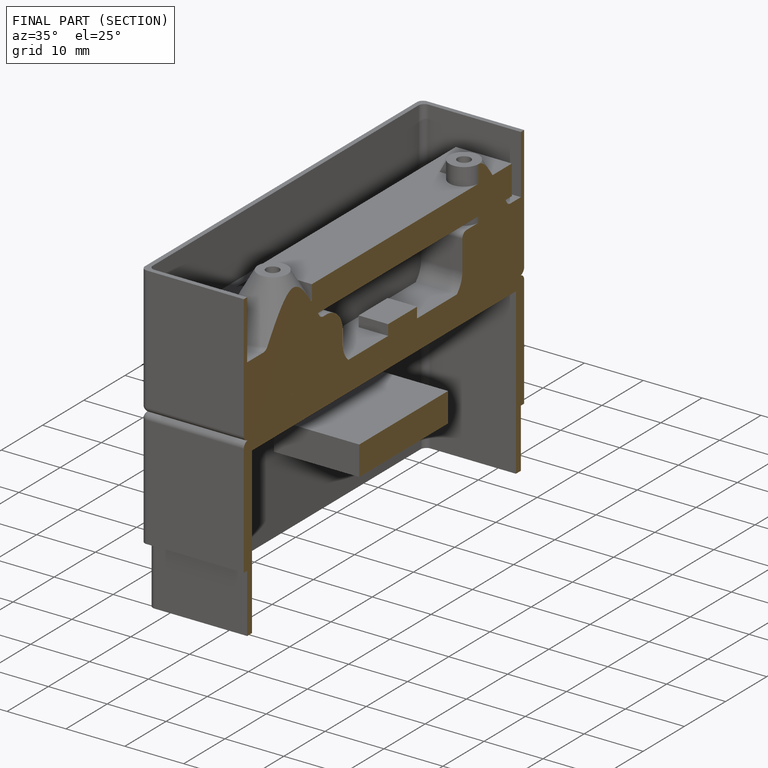
[diagram: finished part — half-section view (interior)]
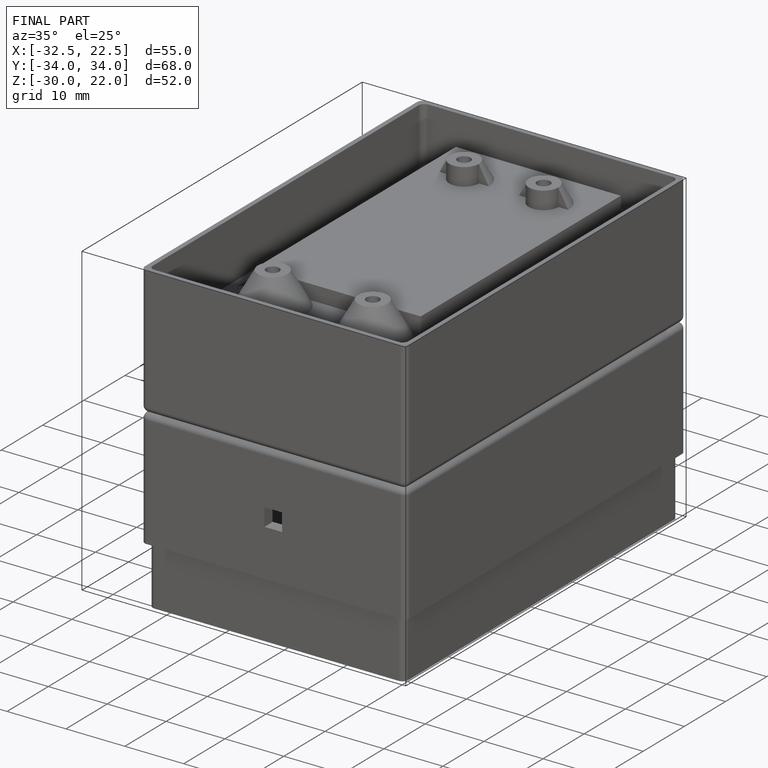
[diagram: finished part — iso view with bounding-box wireframe]
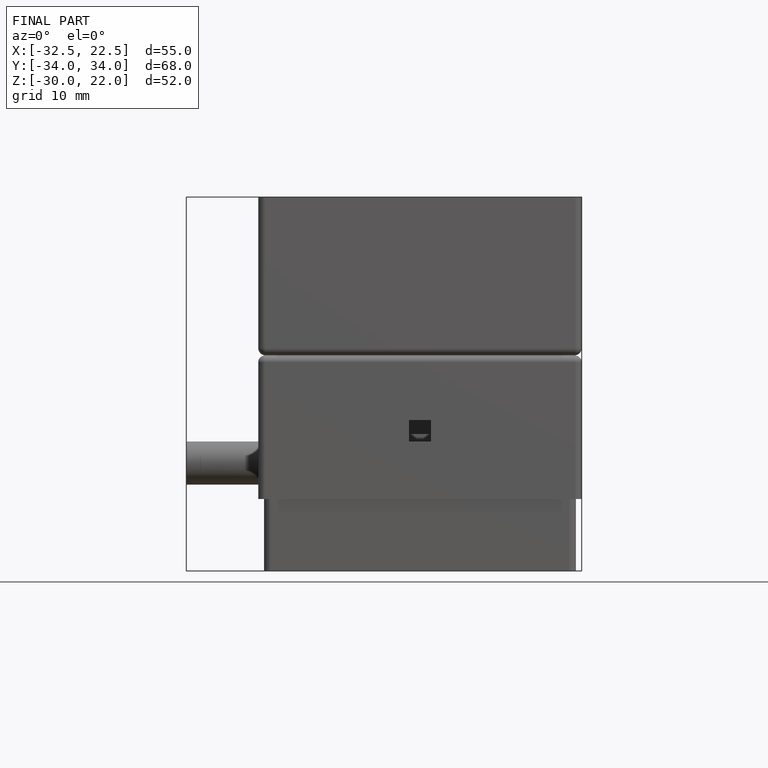
[diagram: finished part — front view with bounding-box wireframe]
